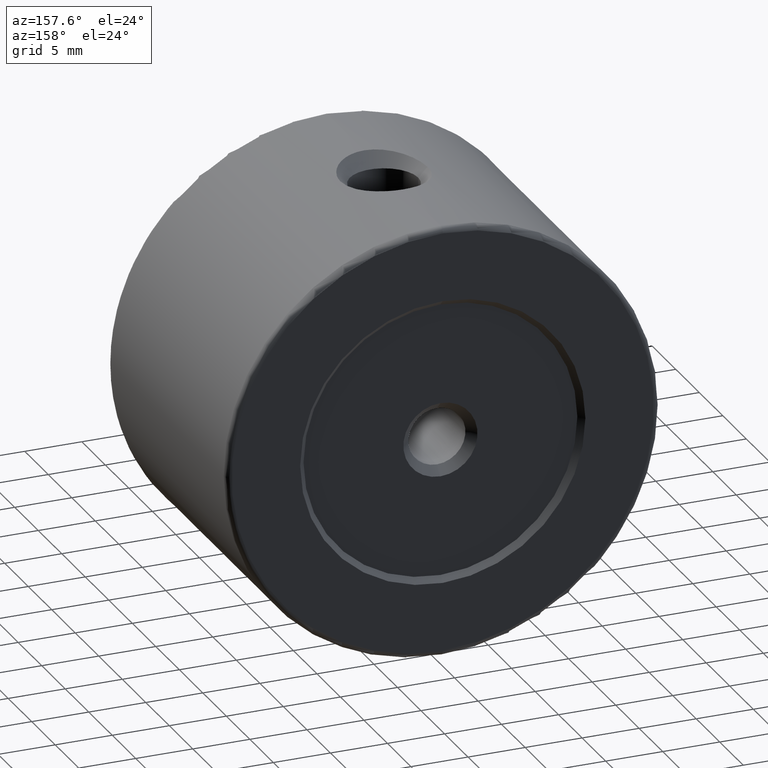
[diagram: clean part render]
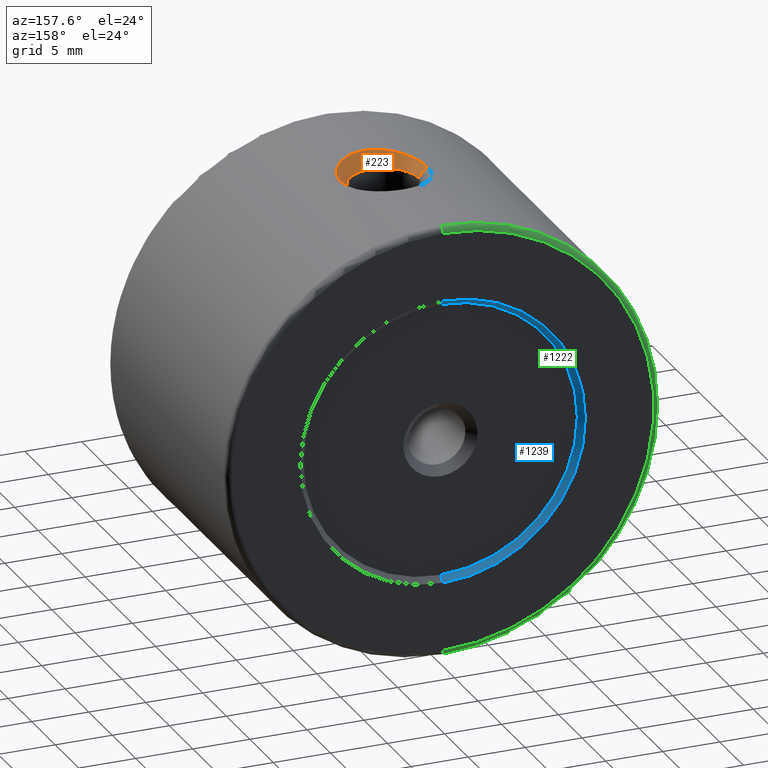
[diagram: same view with three faces highlighted in distinct colors, each labeled with its STEP entity id]
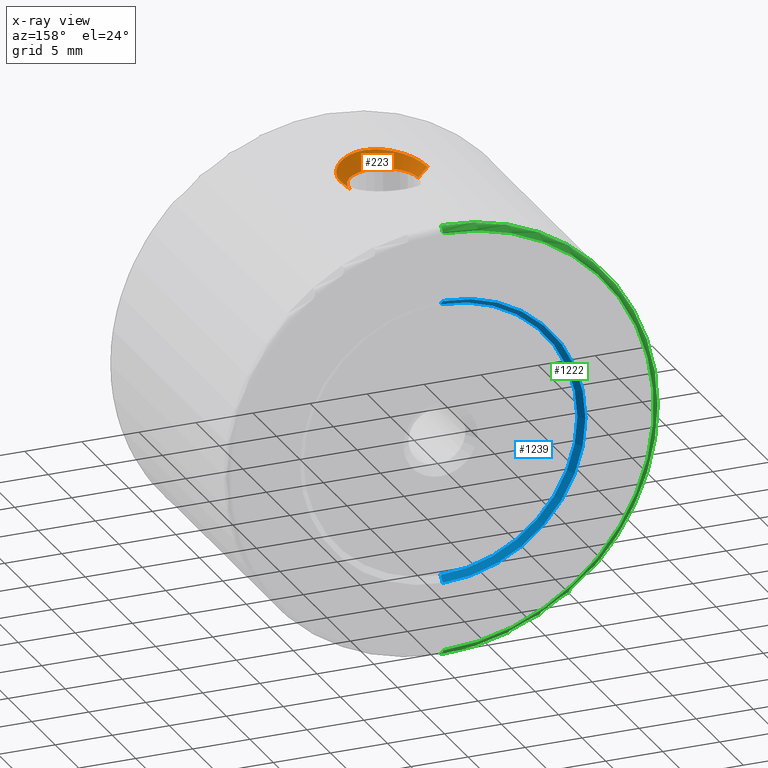
[diagram: x-ray of the same camera — body ghosted, the three highlighted faces saturated]
A machine part, auxiliary view with three faces highlighted in distinct colors.
The next image is the same camera in x-ray (body ghosted, the three faces saturated) — at least one of them is partly hidden behind the body in this view.
Their STEP definitions:

[orange] entity #223 — the highlighted conical surface has half-angle 45 deg.
#5 = EDGE_LOOP ( 'NONE', ( #105, #345, #522, #73, #459 ) ) ;
#18 = LINE ( 'NONE', #1059, #77 ) ;
#23 = DIRECTION ( 'NONE',  ( 0.000000000000000000, 0.000000000000000000, -1.000000000000000000 ) ) ;
#26 = B_SPLINE_CURVE_WITH_KNOTS ( 'NONE', 3,
 ( #289, #352, #72, #1114, #639, #756, #1020, #831, #956, #183, #771, #114, #848, #949, #385, #1237, #491, #664 ),
 .UNSPECIFIED., .F., .F.,
 ( 4, 2, 2, 2, 2, 2, 2, 2, 4 ),
 ( 0.02262406464777515919, 0.02341192012650424384, 0.02419977560523332502, 0.02498763108396240967, 0.02577548656269149085, 0.02656334204142057551, 0.02735119752014966016, 0.02813905299887874134, 0.02892690847760782599 ),
 .UNSPECIFIED. ) ;
#41 = CARTESIAN_POINT ( 'NONE',  ( 3.813384859176113029, 4.485534213115403575E-15, 18.61338485917610797 ) ) ;
#63 = FACE_OUTER_BOUND ( 'NONE', #5, .T. ) ;
#72 = CARTESIAN_POINT ( 'NONE',  ( -3.791022244710912759, -0.5235990304678291851, 18.61800844722787218 ) ) ;
#73 = ORIENTED_EDGE ( 'NONE', *, *, #1062, .T. ) ;
#77 = VECTOR ( 'NONE', #396, 1000.000000000000000 ) ;
#105 = ORIENTED_EDGE ( 'NONE', *, *, #378, .F. ) ;
#106 = CARTESIAN_POINT ( 'NONE',  ( 3.813384859176113029, 4.485534213115403575E-15, 18.61338485917610797 ) ) ;
#107 = CARTESIAN_POINT ( 'NONE',  ( 4.200000000000001954, -5.143516556418886872E-16, 19.00000000000000000 ) ) ;
#114 = CARTESIAN_POINT ( 'NONE',  ( -1.978213162913091905, -3.598261624338995102, 18.89789005104885078 ) ) ;
#141 = VERTEX_POINT ( 'NONE', #1079 ) ;
#159 = CARTESIAN_POINT ( 'NONE',  ( 0.2643608118935061313, -4.200000000000002842, 19.00000000000000000 ) ) ;
#164 = VERTEX_POINT ( 'NONE', #799 ) ;
#165 = CARTESIAN_POINT ( 'NONE',  ( 3.083702293731566790, -2.479907480587627333, 18.74856035406340027 ) ) ;
#169 = AXIS2_PLACEMENT_3D ( 'NONE', #521, #636, #541 ) ;
#183 = CARTESIAN_POINT ( 'NONE',  ( -2.585169056324029047, -3.094836437859383782, 18.82410281578632194 ) ) ;
#184 = B_SPLINE_CURVE_WITH_KNOTS ( 'NONE', 3,
 ( #239, #159, #540, #824, #1189, #245, #1209, #720, #359, #1099, #165, #737, #1117, #1003, #930, #934, #1234, #106 ),
 .UNSPECIFIED., .F., .F.,
 ( 4, 2, 2, 2, 2, 2, 2, 2, 4 ),
 ( 0.003733624680294761987, 0.004520577988407363350, 0.005307531296519965580, 0.006094484604632566943, 0.006881437912745168306, 0.007668391220857769669, 0.008455344528970371032, 0.009242297837082972395, 0.01002925114519557376 ),
 .UNSPECIFIED. ) ;
#223 = ADVANCED_FACE ( 'NONE', ( #63 ), #804, .F. ) ;
#239 = CARTESIAN_POINT ( 'NONE',  ( 2.327192720628906891E-15, -4.200000000000001954, 19.00000000000000000 ) ) ;
#245 = CARTESIAN_POINT ( 'NONE',  ( 1.760538767150910289, -3.733767648488993007, 18.91973886890871981 ) ) ;
#282 = DIRECTION ( 'NONE',  ( 0.7071067811865487940, -8.659560562354948882E-17, 0.7071067811865463515 ) ) ;
#289 = CARTESIAN_POINT ( 'NONE',  ( -3.813384859176109476, -1.658580053227177321E-25, 18.61338485917610797 ) ) ;
#345 = ORIENTED_EDGE ( 'NONE', *, *, #554, .T. ) ;
#352 = CARTESIAN_POINT ( 'NONE',  ( -3.813384859176110364, -0.2628540542688869719, 18.61338485917610797 ) ) ;
#353 = VECTOR ( 'NONE', #282, 1000.000000000000000 ) ;
#359 = CARTESIAN_POINT ( 'NONE',  ( 2.588654675285174900, -3.091255685942118969, 18.82361915243649619 ) ) ;
#378 = EDGE_CURVE ( 'NONE', #164, #534, #770, .T. ) ;
#385 = CARTESIAN_POINT ( 'NONE',  ( -1.034471794619005847, -4.051750067448240955, 18.97353479106898178 ) ) ;
#396 = DIRECTION ( 'NONE',  ( -0.7071067811865487940, 0.000000000000000000, 0.7071067811865463515 ) ) ;
#417 = CARTESIAN_POINT ( 'NONE',  ( 0.000000000000000000, 0.000000000000000000, 17.80000000000000426 ) ) ;
#459 = ORIENTED_EDGE ( 'NONE', *, *, #649, .T. ) ;
#489 = DIRECTION ( 'NONE',  ( 1.000000000000000000, 0.000000000000000000, 0.000000000000000000 ) ) ;
#491 = CARTESIAN_POINT ( 'NONE',  ( -0.2646638775953424894, -4.200000000000004619, 19.00000000000000000 ) ) ;
#521 = CARTESIAN_POINT ( 'NONE',  ( 0.000000000000000000, 0.000000000000000000, 19.00000000000000000 ) ) ;
#522 = ORIENTED_EDGE ( 'NONE', *, *, #925, .T. ) ;
#534 = VERTEX_POINT ( 'NONE', #41 ) ;
#540 = CARTESIAN_POINT ( 'NONE',  ( 0.5270742247394939461, -4.169362194566524238, 18.99440161949765837 ) ) ;
#541 = DIRECTION ( 'NONE',  ( -1.000000000000000000, 0.000000000000000000, 0.000000000000000000 ) ) ;
#554 = EDGE_CURVE ( 'NONE', #164, #932, #1050, .T. ) ;
#624 = VERTEX_POINT ( 'NONE', #1092 ) ;
#636 = DIRECTION ( 'NONE',  ( -0.000000000000000000, -0.000000000000000000, 1.000000000000000000 ) ) ;
#639 = CARTESIAN_POINT ( 'NONE',  ( -3.633240031014604909, -1.299024983518812792, 18.64960552843421837 ) ) ;
#649 = EDGE_CURVE ( 'NONE', #624, #534, #184, .T. ) ;
#664 = CARTESIAN_POINT ( 'NONE',  ( 2.327192720628906891E-15, -4.200000000000001954, 19.00000000000000000 ) ) ;
#685 = CARTESIAN_POINT ( 'NONE',  ( -3.000000000000000444, 2.102117515721012933E-15, 17.80000000000000426 ) ) ;
#720 = CARTESIAN_POINT ( 'NONE',  ( 2.399224342550100086, -3.272267847369859428, 18.84907799735164957 ) ) ;
#737 = CARTESIAN_POINT ( 'NONE',  ( 3.346208697011582522, -2.026862408214944011, 18.70349225525456660 ) ) ;
#756 = CARTESIAN_POINT ( 'NONE',  ( -3.455099763379184452, -1.792132752334157031, 18.68342862309454233 ) ) ;
#770 = LINE ( 'NONE', #107, #353 ) ;
#771 = CARTESIAN_POINT ( 'NONE',  ( -2.392937684758815742, -3.277708043346632572, 18.84986538244543297 ) ) ;
#799 = CARTESIAN_POINT ( 'NONE',  ( 3.000000000000000444, 0.000000000000000000, 17.80000000000000426 ) ) ;
#804 = CONICAL_SURFACE ( 'NONE', #169, 4.200000000000001954, 0.7853981633974500554 ) ;
#824 = CARTESIAN_POINT ( 'NONE',  ( 1.036936331074850282, -4.050975714897528945, 18.97339883011098038 ) ) ;
#831 = CARTESIAN_POINT ( 'NONE',  ( -3.081164845792021101, -2.483838329287717528, 18.74898262824825323 ) ) ;
#848 = CARTESIAN_POINT ( 'NONE',  ( -1.757305281713855249, -3.735545641932358496, 18.92002982493069041 ) ) ;
#898 = AXIS2_PLACEMENT_3D ( 'NONE', #417, #23, #489 ) ;
#925 = EDGE_CURVE ( 'NONE', #932, #141, #18, .T. ) ;
#930 = CARTESIAN_POINT ( 'NONE',  ( 3.701715367238866516, -1.039379487135364544, 18.63596989500373979 ) ) ;
#932 = VERTEX_POINT ( 'NONE', #685 ) ;
#934 = CARTESIAN_POINT ( 'NONE',  ( 3.790936155022186504, -0.5238923155904023909, 18.61802550369087328 ) ) ;
#949 = CARTESIAN_POINT ( 'NONE',  ( -1.287014930390578238, -3.962184208051493961, 18.95782801373506032 ) ) ;
#956 = CARTESIAN_POINT ( 'NONE',  ( -2.927605170115340716, -2.699752761084456498, 18.77389341178285775 ) ) ;
#1003 = CARTESIAN_POINT ( 'NONE',  ( 3.633941105795898352, -1.296681371469082800, 18.64946851498529767 ) ) ;
#1020 = CARTESIAN_POINT ( 'NONE',  ( -3.345087009819443846, -2.029240477363043471, 18.70369801130344101 ) ) ;
#1050 = CIRCLE ( 'NONE', #898, 3.000000000000000444 ) ;
#1059 = CARTESIAN_POINT ( 'NONE',  ( -4.200000000000001954, 0.000000000000000000, 19.00000000000000000 ) ) ;
#1062 = EDGE_CURVE ( 'NONE', #141, #624, #26, .T. ) ;
#1079 = CARTESIAN_POINT ( 'NONE',  ( -3.813384859176109476, -1.658580053227177321E-25, 18.61338485917610797 ) ) ;
#1092 = CARTESIAN_POINT ( 'NONE',  ( 2.327192720628906891E-15, -4.200000000000001954, 19.00000000000000000 ) ) ;
#1099 = CARTESIAN_POINT ( 'NONE',  ( 2.930081690025330143, -2.696446970008286925, 18.77350239869024406 ) ) ;
#1114 = CARTESIAN_POINT ( 'NONE',  ( -3.701422683337228570, -1.040865931549337375, 18.63602850180846815 ) ) ;
#1117 = CARTESIAN_POINT ( 'NONE',  ( 3.455971796308064281, -1.790118321469071239, 18.68326691975855880 ) ) ;
#1189 = CARTESIAN_POINT ( 'NONE',  ( 1.288712811842475769, -3.961583432246448933, 18.95772230271689551 ) ) ;
#1209 = CARTESIAN_POINT ( 'NONE',  ( 1.982410025684199884, -3.595584354445323871, 18.89746198001724409 ) ) ;
#1234 = CARTESIAN_POINT ( 'NONE',  ( 3.813384859176109920, -0.2633610886248725080, 18.61338485917610797 ) ) ;
#1237 = CARTESIAN_POINT ( 'NONE',  ( -0.5243944849667022678, -4.169780258874117074, 18.99447721802060940 ) ) ;

[blue] entity #1239 — the highlighted conical surface has half-angle 45 deg.
#59 = ORIENTED_EDGE ( 'NONE', *, *, #498, .T. ) ;
#67 = EDGE_LOOP ( 'NONE', ( #244, #757, #59, #332 ) ) ;
#75 = CARTESIAN_POINT ( 'NONE',  ( 0.000000000000000000, 12.50000000000000000, 12.50000000000000000 ) ) ;
#119 = EDGE_CURVE ( 'NONE', #638, #416, #561, .T. ) ;
#173 = CONICAL_SURFACE ( 'NONE', #609, 12.50000000000000000, 0.7853981633974500554 ) ;
#177 = DIRECTION ( 'NONE',  ( 8.659560562354948882E-17, 0.7071067811865463515, -0.7071067811865487940 ) ) ;
#211 = DIRECTION ( 'NONE',  ( 0.000000000000000000, 0.000000000000000000, 1.000000000000000000 ) ) ;
#232 = CARTESIAN_POINT ( 'NONE',  ( 0.000000000000000000, 12.00000000000000000, 0.000000000000000000 ) ) ;
#244 = ORIENTED_EDGE ( 'NONE', *, *, #119, .F. ) ;
#280 = VERTEX_POINT ( 'NONE', #893 ) ;
#332 = ORIENTED_EDGE ( 'NONE', *, *, #1204, .F. ) ;
#413 = DIRECTION ( 'NONE',  ( 0.000000000000000000, 0.000000000000000000, 1.000000000000000000 ) ) ;
#414 = DIRECTION ( 'NONE',  ( 0.000000000000000000, 1.000000000000000000, 0.000000000000000000 ) ) ;
#416 = VERTEX_POINT ( 'NONE', #462 ) ;
#418 = CARTESIAN_POINT ( 'NONE',  ( 0.000000000000000000, 12.50000000000000000, 12.50000000000000000 ) ) ;
#444 = CARTESIAN_POINT ( 'NONE',  ( 1.500192328955507734E-15, 12.00000000000000000, -12.00000000000000000 ) ) ;
#452 = VECTOR ( 'NONE', #1160, 1000.000000000000000 ) ;
#462 = CARTESIAN_POINT ( 'NONE',  ( 0.000000000000000000, 12.00000000000000000, 12.00000000000000000 ) ) ;
#468 = LINE ( 'NONE', #551, #529 ) ;
#488 = AXIS2_PLACEMENT_3D ( 'NONE', #232, #414, #873 ) ;
#498 = EDGE_CURVE ( 'NONE', #280, #648, #1129, .T. ) ;
#506 = DIRECTION ( 'NONE',  ( 0.000000000000000000, 1.000000000000000000, 0.000000000000000000 ) ) ;
#529 = VECTOR ( 'NONE', #177, 1000.000000000000000 ) ;
#551 = CARTESIAN_POINT ( 'NONE',  ( 1.530808498934191521E-15, 12.50000000000000000, -12.50000000000000000 ) ) ;
#561 = CIRCLE ( 'NONE', #488, 12.00000000000000000 ) ;
#609 = AXIS2_PLACEMENT_3D ( 'NONE', #688, #787, #211 ) ;
#638 = VERTEX_POINT ( 'NONE', #444 ) ;
#648 = VERTEX_POINT ( 'NONE', #75 ) ;
#688 = CARTESIAN_POINT ( 'NONE',  ( 0.000000000000000000, 12.50000000000000000, 0.000000000000000000 ) ) ;
#726 = EDGE_CURVE ( 'NONE', #638, #280, #468, .T. ) ;
#757 = ORIENTED_EDGE ( 'NONE', *, *, #726, .T. ) ;
#787 = DIRECTION ( 'NONE',  ( -0.000000000000000000, 1.000000000000000000, -0.000000000000000000 ) ) ;
#873 = DIRECTION ( 'NONE',  ( 0.000000000000000000, 0.000000000000000000, 1.000000000000000000 ) ) ;
#893 = CARTESIAN_POINT ( 'NONE',  ( 1.530808498934191521E-15, 12.50000000000000000, -12.50000000000000000 ) ) ;
#969 = LINE ( 'NONE', #418, #452 ) ;
#1077 = CARTESIAN_POINT ( 'NONE',  ( 0.000000000000000000, 12.50000000000000000, 0.000000000000000000 ) ) ;
#1091 = AXIS2_PLACEMENT_3D ( 'NONE', #1077, #506, #413 ) ;
#1129 = CIRCLE ( 'NONE', #1091, 12.50000000000000000 ) ;
#1160 = DIRECTION ( 'NONE',  ( 0.000000000000000000, 0.7071067811865463515, 0.7071067811865487940 ) ) ;
#1172 = FACE_OUTER_BOUND ( 'NONE', #67, .T. ) ;
#1204 = EDGE_CURVE ( 'NONE', #416, #648, #969, .T. ) ;
#1239 = ADVANCED_FACE ( 'NONE', ( #1172 ), #173, .F. ) ;

[green] entity #1222 — the highlighted toroidal blend (fillet) surface has major radius 18.5 mm and minor (blend) radius 0.5 mm.
#30 = CARTESIAN_POINT ( 'NONE',  ( 0.000000000000000000, 12.00000000000000000, 0.000000000000000000 ) ) ;
#50 = VERTEX_POINT ( 'NONE', #89 ) ;
#79 = EDGE_CURVE ( 'NONE', #914, #50, #843, .T. ) ;
#89 = CARTESIAN_POINT ( 'NONE',  ( 2.296212748401287183E-15, 12.50000000000000000, -18.50000000000000000 ) ) ;
#135 = CARTESIAN_POINT ( 'NONE',  ( 0.000000000000000000, 12.00000000000000000, -19.00000000000000000 ) ) ;
#202 = DIRECTION ( 'NONE',  ( 0.000000000000000000, 1.000000000000000000, 0.000000000000000000 ) ) ;
#277 = AXIS2_PLACEMENT_3D ( 'NONE', #846, #481, #841 ) ;
#315 = AXIS2_PLACEMENT_3D ( 'NONE', #883, #496, #325 ) ;
#325 = DIRECTION ( 'NONE',  ( 1.224646799147349509E-16, 0.000000000000000000, -1.000000000000000000 ) ) ;
#390 = EDGE_CURVE ( 'NONE', #395, #914, #984, .T. ) ;
#395 = VERTEX_POINT ( 'NONE', #458 ) ;
#430 = ORIENTED_EDGE ( 'NONE', *, *, #662, .T. ) ;
#443 = EDGE_LOOP ( 'NONE', ( #933, #656, #430, #1216 ) ) ;
#448 = AXIS2_PLACEMENT_3D ( 'NONE', #936, #1128, #1223 ) ;
#458 = CARTESIAN_POINT ( 'NONE',  ( 2.326828918379970970E-15, 12.00000000000000000, 19.00000000000000000 ) ) ;
#481 = DIRECTION ( 'NONE',  ( -1.000000000000000000, 0.000000000000000000, 0.000000000000000000 ) ) ;
#486 = VERTEX_POINT ( 'NONE', #585 ) ;
#496 = DIRECTION ( 'NONE',  ( 1.000000000000000000, -0.000000000000000000, 1.224646799147353207E-16 ) ) ;
#501 = FACE_OUTER_BOUND ( 'NONE', #443, .T. ) ;
#507 = DIRECTION ( 'NONE',  ( 0.000000000000000000, 1.000000000000000000, 0.000000000000000000 ) ) ;
#585 = CARTESIAN_POINT ( 'NONE',  ( 0.000000000000000000, 12.50000000000000000, 18.50000000000000000 ) ) ;
#632 = AXIS2_PLACEMENT_3D ( 'NONE', #30, #507, #712 ) ;
#651 = CIRCLE ( 'NONE', #277, 0.5000000000000004441 ) ;
#656 = ORIENTED_EDGE ( 'NONE', *, *, #390, .F. ) ;
#662 = EDGE_CURVE ( 'NONE', #395, #486, #651, .T. ) ;
#671 = CIRCLE ( 'NONE', #1186, 18.50000000000000000 ) ;
#712 = DIRECTION ( 'NONE',  ( 0.000000000000000000, 0.000000000000000000, 1.000000000000000000 ) ) ;
#841 = DIRECTION ( 'NONE',  ( 0.000000000000000000, 0.000000000000000000, 1.000000000000000000 ) ) ;
#843 = CIRCLE ( 'NONE', #315, 0.5000000000000004441 ) ;
#846 = CARTESIAN_POINT ( 'NONE',  ( 0.000000000000000000, 12.00000000000000000, 18.50000000000000000 ) ) ;
#860 = EDGE_CURVE ( 'NONE', #50, #486, #671, .T. ) ;
#883 = CARTESIAN_POINT ( 'NONE',  ( 2.265596578422603396E-15, 12.00000000000000000, -18.50000000000000000 ) ) ;
#900 = TOROIDAL_SURFACE ( 'NONE', #632, 18.50000000000000000, 0.5000000000000000000 ) ;
#914 = VERTEX_POINT ( 'NONE', #135 ) ;
#933 = ORIENTED_EDGE ( 'NONE', *, *, #79, .F. ) ;
#936 = CARTESIAN_POINT ( 'NONE',  ( 0.000000000000000000, 12.00000000000000000, 0.000000000000000000 ) ) ;
#954 = DIRECTION ( 'NONE',  ( 0.000000000000000000, 0.000000000000000000, 1.000000000000000000 ) ) ;
#978 = CARTESIAN_POINT ( 'NONE',  ( 0.000000000000000000, 12.50000000000000000, 0.000000000000000000 ) ) ;
#984 = CIRCLE ( 'NONE', #448, 19.00000000000000000 ) ;
#1128 = DIRECTION ( 'NONE',  ( -0.000000000000000000, -1.000000000000000000, -0.000000000000000000 ) ) ;
#1186 = AXIS2_PLACEMENT_3D ( 'NONE', #978, #202, #954 ) ;
#1216 = ORIENTED_EDGE ( 'NONE', *, *, #860, .F. ) ;
#1222 = ADVANCED_FACE ( 'NONE', ( #501 ), #900, .T. ) ;
#1223 = DIRECTION ( 'NONE',  ( 0.000000000000000000, 0.000000000000000000, 1.000000000000000000 ) ) ;